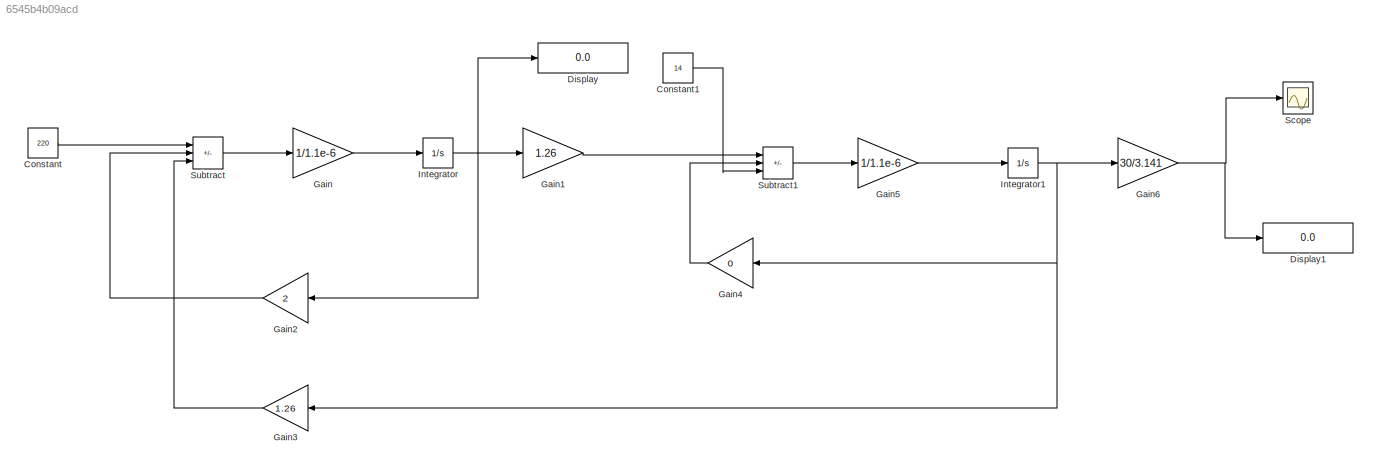
MODEL slx_6545b4b09acd
KIND model
CONFIG AbsTol = auto
CONFIG EnableMultiTasking = off
CONFIG FixedStep = auto
CONFIG MaxStep = 1e-6
CONFIG MinStep = auto
CONFIG RelTol = 1e-3
CONFIG SampleTimeConstraint = Unconstrained
CONFIG SolverName = VariableStepAuto
CONFIG StartTime = 0.0
CONFIG StopTime = 2
BLOCK [Constant] Constant
  Value = 220
BLOCK [Constant] Constant1
  Value = 14
BLOCK [Display] Display
  Decimation = 1
  Ports = [1]
BLOCK [Display] Display1
  Decimation = 1
  Ports = [1]
BLOCK [Gain] Gain
  Gain = 1/1.1e-6
BLOCK [Gain] Gain1
  Gain = 1.26
BLOCK [Gain] Gain2
  Gain = 2
  NameLocation = top
BLOCK [Gain] Gain3
  Gain = 1.26
  NameLocation = top
BLOCK [Gain] Gain4
  Gain = 0
  NameLocation = top
BLOCK [Gain] Gain5
  Gain = 1/1.1e-6
BLOCK [Gain] Gain6
  Gain = 30/3.141
BLOCK [Integrator] Integrator
  Ports = [1, 1]
BLOCK [Integrator] Integrator1
  Ports = [1, 1]
BLOCK [Scope] Scope
  Floating = off
  NumInputPorts = 1
  Ports = [1]
  ScopeSpecificationString = Simulink.scopes.TimeScopeBlockCfg('CurrentConfiguration', extmgr.ConfigurationSet(extmgr.Configuration('Core','General UI',true,'FigureColor',[1 1 1]),extmgr.Configuration('Core','Source UI',true),extmgr.Configuration('Sources','WiredSimulink',true),extmgr.Configuration('Visuals','Time Domain',true,'SerializedDisplays',{struct('MinYLimReal','1145.94062','MaxYLimReal','1645.20139','YLabelReal','','...<+1543ch>
BLOCK [Sum] Subtract
  IconShape = rectangular
  Inputs = +--
  Ports = [3, 1]
BLOCK [Sum] Subtract1
  IconShape = rectangular
  Inputs = +--
  Ports = [3, 1]
LINE Constant1:1 -> Subtract1:3
LINE Constant:1 -> Subtract:1
LINE Gain1:1 -> Subtract1:1
LINE Gain2:1 -> Subtract:2
LINE Gain3:1 -> Subtract:3
LINE Gain4:1 -> Subtract1:2
LINE Gain5:1 -> Integrator1:1
NET Gain6:1 -> Display1:1, Scope:1
LINE Gain:1 -> Integrator:1
NET Integrator1:1 -> Gain3:1, Gain4:1, Gain6:1
NET Integrator:1 -> Display:1, Gain1:1, Gain2:1
LINE Subtract1:1 -> Gain5:1
LINE Subtract:1 -> Gain:1
note: NET lines group one-source signal fan-out (src -> all destinations, sorted); 1:1 wires keep LINE
